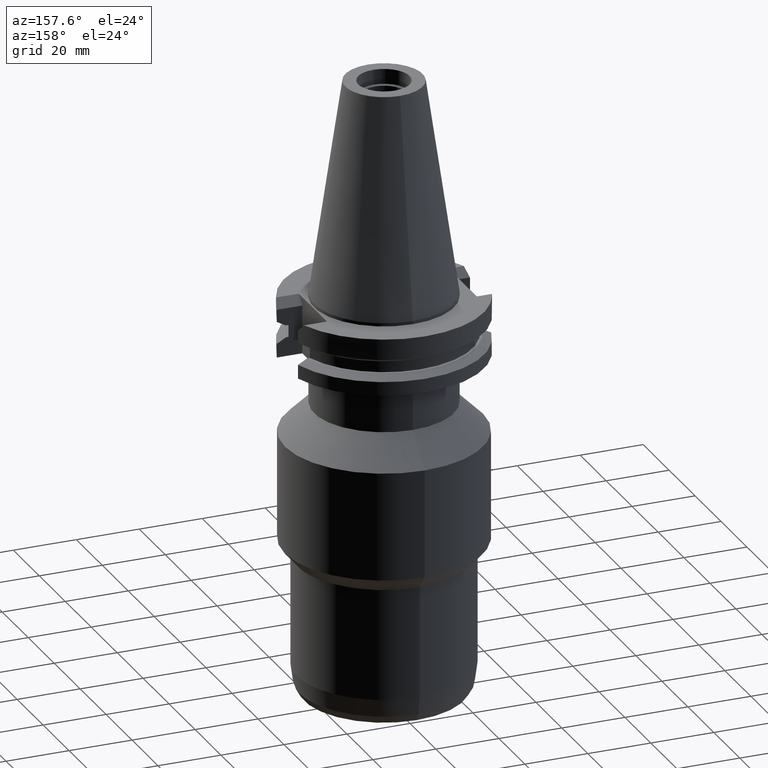
[diagram: clean part render]
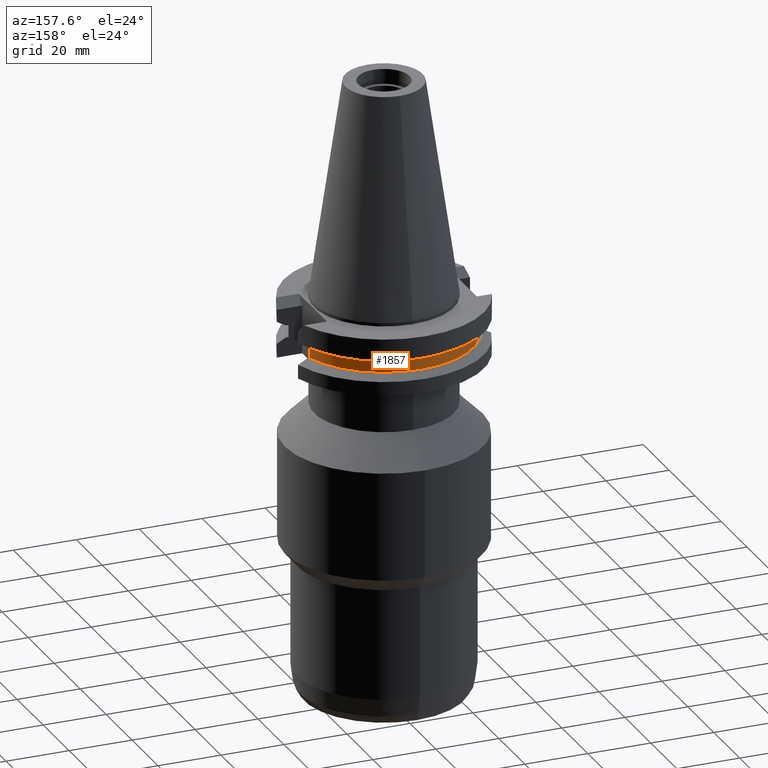
[diagram: same view with one face highlighted and labeled with its STEP entity id]
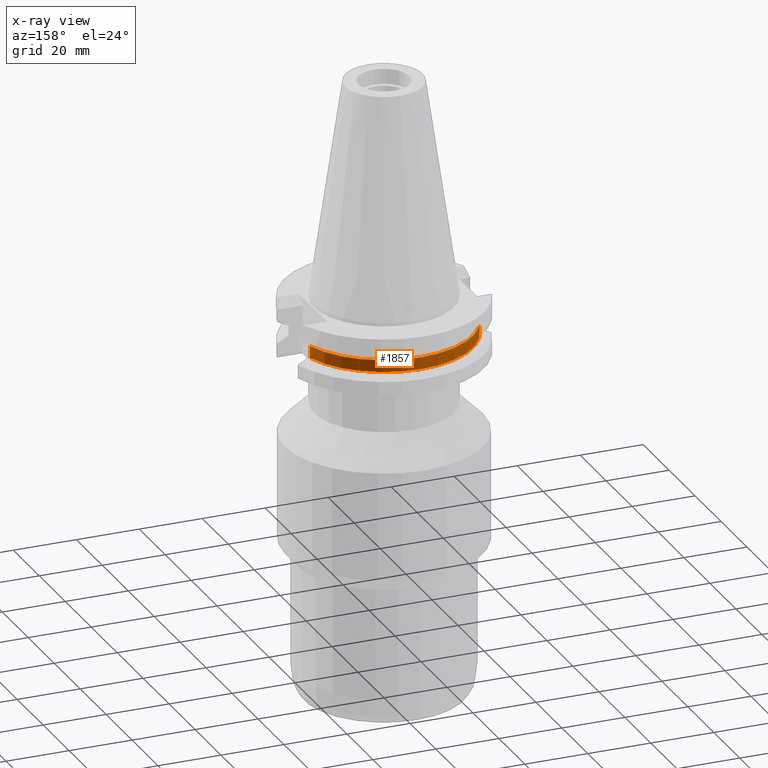
[diagram: x-ray of the same camera — body ghosted, the highlighted face saturated]
A machine part, auxiliary view. The second image highlights one B-rep face of the part: STEP entity #1857.
The next image is the same camera in x-ray: the body ghosted, the highlighted face saturated — about 0% of this face is hidden behind the body in this view.
In plain terms, the highlighted cylindrical surface (partial cylindrical patch) has radius 28.18 mm, axis along (0, 0, -1).
Its self-contained STEP definition (entity closure, byte-faithful):
#453=CARTESIAN_POINT('',(0.E0,2.180024383332E-14,-1.30475E1));
#454=DIRECTION('',(0.E0,0.E0,1.E0));
#455=DIRECTION('',(9.568350128908E-1,2.906316536551E-1,0.E0));
#456=AXIS2_PLACEMENT_3D('',#453,#454,#455);
#461=CARTESIAN_POINT('',(0.E0,2.180024383332E-14,-1.30475E1));
#462=DIRECTION('',(0.E0,0.E0,1.E0));
#463=DIRECTION('',(0.E0,1.E0,0.E0));
#464=AXIS2_PLACEMENT_3D('',#461,#462,#463);
#492=DIRECTION('',(0.E0,0.E0,1.E0));
#493=VECTOR('',#492,3.84E0);
#494=CARTESIAN_POINT('',(2.696361066326E1,8.19E0,-1.30475E1));
#495=LINE('',#494,#493);
#499=DIRECTION('',(0.E0,0.E0,-1.E0));
#500=VECTOR('',#499,3.84E0);
#501=CARTESIAN_POINT('',(-2.696361066326E1,8.19E0,-9.2075E0));
#502=LINE('',#501,#500);
#529=CARTESIAN_POINT('',(0.E0,2.180024383332E-14,-9.2075E0));
#530=DIRECTION('',(0.E0,0.E0,-1.E0));
#531=DIRECTION('',(-9.568350128908E-1,2.906316536551E-1,0.E0));
#532=AXIS2_PLACEMENT_3D('',#529,#530,#531);
#537=CARTESIAN_POINT('',(0.E0,2.180024383332E-14,-9.2075E0));
#538=DIRECTION('',(0.E0,0.E0,-1.E0));
#539=DIRECTION('',(0.E0,1.E0,0.E0));
#540=AXIS2_PLACEMENT_3D('',#537,#538,#539);
#1456=CARTESIAN_POINT('',(-2.696361066326E1,8.19E0,-1.30475E1));
#1457=VERTEX_POINT('',#1456);
#1458=CARTESIAN_POINT('',(-2.696361066326E1,8.19E0,-9.2075E0));
#1459=VERTEX_POINT('',#1458);
#1472=CARTESIAN_POINT('',(2.696361066326E1,8.19E0,-1.30475E1));
#1473=VERTEX_POINT('',#1472);
#1474=CARTESIAN_POINT('',(-6.305166448056E-14,2.818E1,-1.30475E1));
#1475=VERTEX_POINT('',#1474);
#1478=CARTESIAN_POINT('',(2.696361066326E1,8.19E0,-9.2075E0));
#1479=VERTEX_POINT('',#1478);
#1480=CARTESIAN_POINT('',(4.351173924716E-14,2.818E1,-9.2075E0));
#1481=VERTEX_POINT('',#1480);
#1842=CARTESIAN_POINT('',(0.E0,2.180024383332E-14,7.80125E1));
#1843=DIRECTION('',(0.E0,0.E0,-1.E0));
#1844=DIRECTION('',(0.E0,-1.E0,0.E0));
#1845=AXIS2_PLACEMENT_3D('',#1842,#1843,#1844);
#1846=CYLINDRICAL_SURFACE('',#1845,2.818E1);
#1847=ORIENTED_EDGE('',*,*,#1689,.T.);
#1849=ORIENTED_EDGE('',*,*,#1848,.F.);
#1851=ORIENTED_EDGE('',*,*,#1850,.F.);
#1852=ORIENTED_EDGE('',*,*,#1782,.T.);
#1853=ORIENTED_EDGE('',*,*,#1834,.F.);
#1854=ORIENTED_EDGE('',*,*,#1832,.F.);
#1855=EDGE_LOOP('',(#1847,#1849,#1851,#1852,#1853,#1854));
#1856=FACE_OUTER_BOUND('',#1855,.F.);
#457=CIRCLE('',#456,2.818E1);
#465=CIRCLE('',#464,2.818E1);
#533=CIRCLE('',#532,2.818E1);
#541=CIRCLE('',#540,2.818E1);
#1689=EDGE_CURVE('',#1473,#1479,#495,.T.);
#1782=EDGE_CURVE('',#1459,#1457,#502,.T.);
#1832=EDGE_CURVE('',#1473,#1475,#457,.T.);
#1834=EDGE_CURVE('',#1475,#1457,#465,.T.);
#1848=EDGE_CURVE('',#1481,#1479,#541,.T.);
#1850=EDGE_CURVE('',#1459,#1481,#533,.T.);
#1857=ADVANCED_FACE('',(#1856),#1846,.T.);